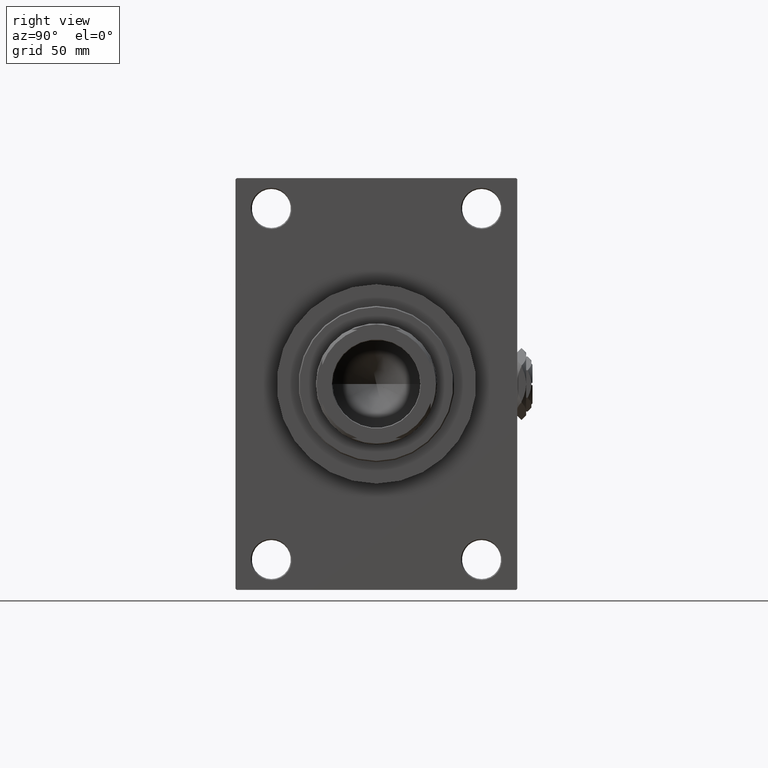
[diagram: clean part render]
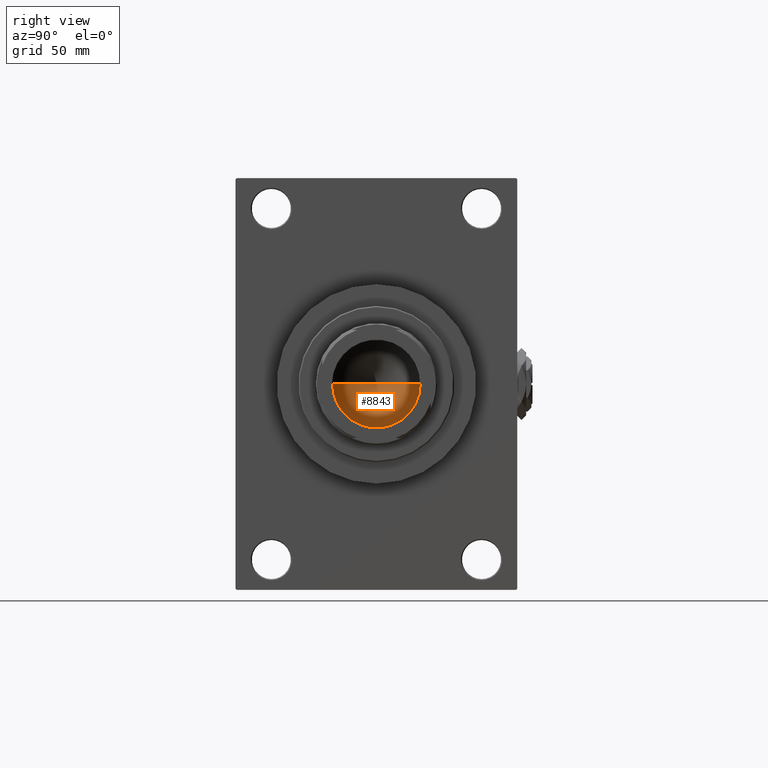
[diagram: same view with one face highlighted and labeled with its STEP entity id]
A machine part, right view. The second image highlights one B-rep face of the part: STEP entity #8843.
In plain terms, the highlighted conical surface has half-angle 59 deg.
Its self-contained STEP definition (entity closure, byte-faithful):
#587 = CARTESIAN_POINT ( 'NONE',  ( -20.24999999999998934, 2.479909768273389117E-15, 117.0000000000000142 ) ) ;
#1377 = CARTESIAN_POINT ( 'NONE',  ( 0.000000000000000000, 0.000000000000000000, 117.0000000000000142 ) ) ;
#5485 = CARTESIAN_POINT ( 'NONE',  ( -1.584115414415908206E-14, 0.000000000000000000, 104.8325724646918928 ) ) ;
#6955 = AXIS2_PLACEMENT_3D ( 'NONE', #1377, #47527, #16791 ) ;
#8677 = DIRECTION ( 'NONE',  ( -0.8571673007021115565, 1.049727191138617710E-16, 0.5150380749100554878 ) ) ;
#8843 = ADVANCED_FACE ( 'NONE', ( #26819 ), #34246, .F. ) ;
#9263 = EDGE_LOOP ( 'NONE', ( #46854, #47278, #11661 ) ) ;
#11661 = ORIENTED_EDGE ( 'NONE', *, *, #39732, .T. ) ;
#12283 = VERTEX_POINT ( 'NONE', #12760 ) ;
#12760 = CARTESIAN_POINT ( 'NONE',  ( -20.24999999999998934, 2.479909768273389117E-15, 117.0000000000000142 ) ) ;
#16220 = LINE ( 'NONE', #23264, #36162 ) ;
#16791 = DIRECTION ( 'NONE',  ( 1.000000000000000000, 0.000000000000000000, 0.000000000000000000 ) ) ;
#17893 = CARTESIAN_POINT ( 'NONE',  ( 20.24999999999998934, 0.000000000000000000, 117.0000000000000142 ) ) ;
#19772 = VERTEX_POINT ( 'NONE', #5485 ) ;
#21404 = AXIS2_PLACEMENT_3D ( 'NONE', #34633, #34131, #30597 ) ;
#21515 = VECTOR ( 'NONE', #8677, 1000.000000000000000 ) ;
#23264 = CARTESIAN_POINT ( 'NONE',  ( 20.24999999999998934, 0.000000000000000000, 117.0000000000000142 ) ) ;
#26819 = FACE_OUTER_BOUND ( 'NONE', #9263, .T. ) ;
#30286 = CIRCLE ( 'NONE', #6955, 20.24999999999998934 ) ;
#30597 = DIRECTION ( 'NONE',  ( 1.000000000000000000, 0.000000000000000000, 0.000000000000000000 ) ) ;
#34131 = DIRECTION ( 'NONE',  ( -0.000000000000000000, -0.000000000000000000, 1.000000000000000000 ) ) ;
#34246 = CONICAL_SURFACE ( 'NONE', #21404, 20.24999999999998934, 1.029744258676652979 ) ;
#34633 = CARTESIAN_POINT ( 'NONE',  ( 0.000000000000000000, 0.000000000000000000, 117.0000000000000142 ) ) ;
#35125 = LINE ( 'NONE', #587, #21515 ) ;
#35254 = VERTEX_POINT ( 'NONE', #17893 ) ;
#36162 = VECTOR ( 'NONE', #46952, 1000.000000000000000 ) ;
#39732 = EDGE_CURVE ( 'NONE', #35254, #12283, #30286, .T. ) ;
#41900 = EDGE_CURVE ( 'NONE', #19772, #12283, #35125, .T. ) ;
#45839 = EDGE_CURVE ( 'NONE', #19772, #35254, #16220, .T. ) ;
#46854 = ORIENTED_EDGE ( 'NONE', *, *, #41900, .F. ) ;
#46952 = DIRECTION ( 'NONE',  ( 0.8571673007021115565, 0.000000000000000000, 0.5150380749100554878 ) ) ;
#47278 = ORIENTED_EDGE ( 'NONE', *, *, #45839, .T. ) ;
#47527 = DIRECTION ( 'NONE',  ( -0.000000000000000000, -0.000000000000000000, 1.000000000000000000 ) ) ;